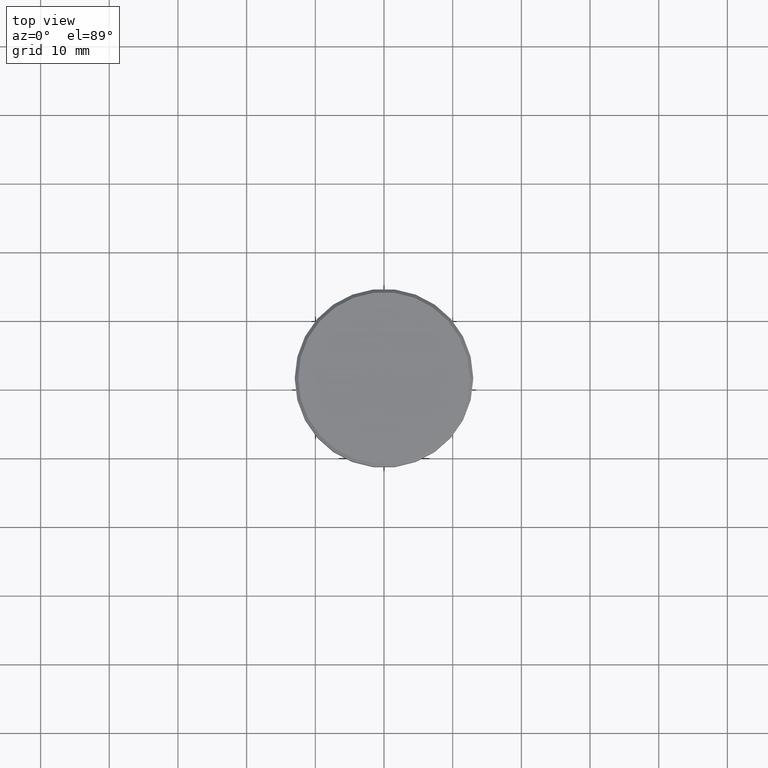
[diagram: clean part render]
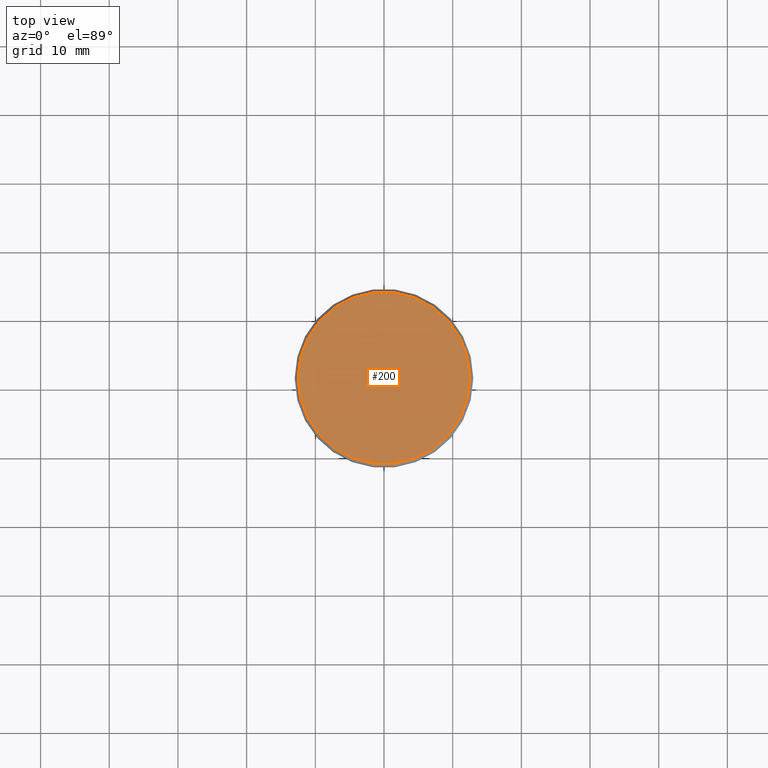
[diagram: same view with one face highlighted and labeled with its STEP entity id]
A machine part, top view. The second image highlights one B-rep face of the part: STEP entity #200.
In plain terms, the highlighted planar face has unit normal (0, -0, 1).
Its self-contained STEP definition (entity closure, byte-faithful):
#94 = VERTEX_POINT ( 'NONE', #1132 ) ;
#111 = EDGE_CURVE ( 'NONE', #1104, #94, #770, .T. ) ;
#124 = FACE_OUTER_BOUND ( 'NONE', #1099, .T. ) ;
#200 = ADVANCED_FACE ( 'NONE', ( #124 ), #391, .T. ) ;
#224 = DIRECTION ( 'NONE',  ( 1.000000000000000000, 0.000000000000000000, 0.000000000000000000 ) ) ;
#391 = PLANE ( 'NONE',  #549 ) ;
#402 = DIRECTION ( 'NONE',  ( 1.000000000000000000, 0.000000000000000000, 0.000000000000000000 ) ) ;
#502 = AXIS2_PLACEMENT_3D ( 'NONE', #920, #662, #594 ) ;
#549 = AXIS2_PLACEMENT_3D ( 'NONE', #750, #1020, #402 ) ;
#594 = DIRECTION ( 'NONE',  ( 1.000000000000000000, 0.000000000000000000, 0.000000000000000000 ) ) ;
#595 = DIRECTION ( 'NONE',  ( -0.000000000000000000, -0.000000000000000000, 1.000000000000000000 ) ) ;
#662 = DIRECTION ( 'NONE',  ( -0.000000000000000000, -0.000000000000000000, 1.000000000000000000 ) ) ;
#750 = CARTESIAN_POINT ( 'NONE',  ( 0.000000000000000000, 0.000000000000000000, 0.000000000000000000 ) ) ;
#770 = CIRCLE ( 'NONE', #1163, 12.49999999999999645 ) ;
#773 = CIRCLE ( 'NONE', #502, 12.49999999999999645 ) ;
#901 = EDGE_CURVE ( 'NONE', #94, #1104, #773, .T. ) ;
#920 = CARTESIAN_POINT ( 'NONE',  ( 0.000000000000000000, 0.000000000000000000, 0.000000000000000000 ) ) ;
#957 = CARTESIAN_POINT ( 'NONE',  ( -12.49999999999999645, 0.000000000000000000, 0.000000000000000000 ) ) ;
#1002 = ORIENTED_EDGE ( 'NONE', *, *, #111, .T. ) ;
#1011 = ORIENTED_EDGE ( 'NONE', *, *, #901, .T. ) ;
#1020 = DIRECTION ( 'NONE',  ( 0.000000000000000000, -0.000000000000000000, 1.000000000000000000 ) ) ;
#1037 = CARTESIAN_POINT ( 'NONE',  ( 0.000000000000000000, 0.000000000000000000, 0.000000000000000000 ) ) ;
#1099 = EDGE_LOOP ( 'NONE', ( #1002, #1011 ) ) ;
#1104 = VERTEX_POINT ( 'NONE', #957 ) ;
#1132 = CARTESIAN_POINT ( 'NONE',  ( 12.49999999999999645, 1.561424668912875111E-15, 0.000000000000000000 ) ) ;
#1163 = AXIS2_PLACEMENT_3D ( 'NONE', #1037, #595, #224 ) ;